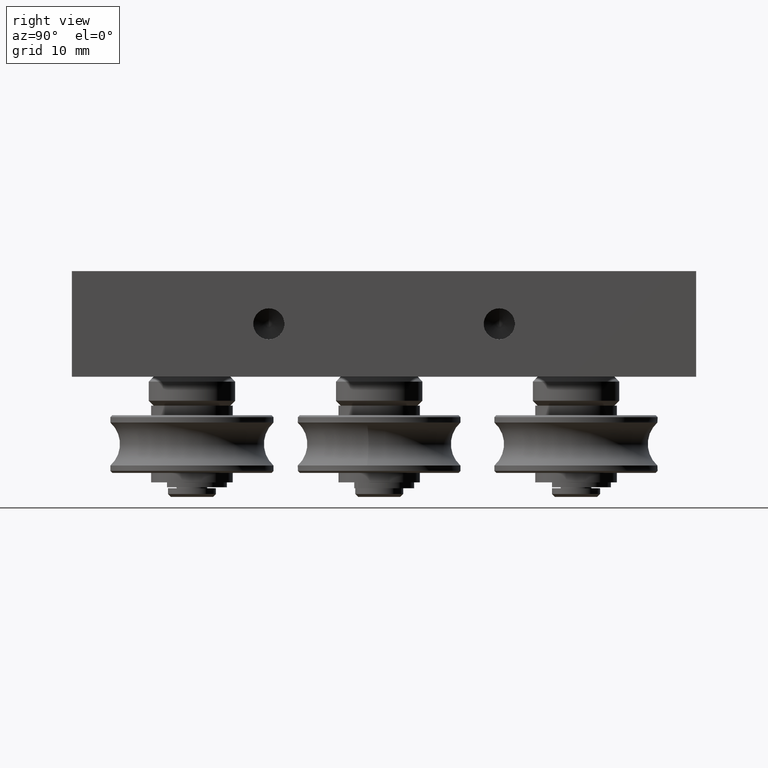
[diagram: clean part render]
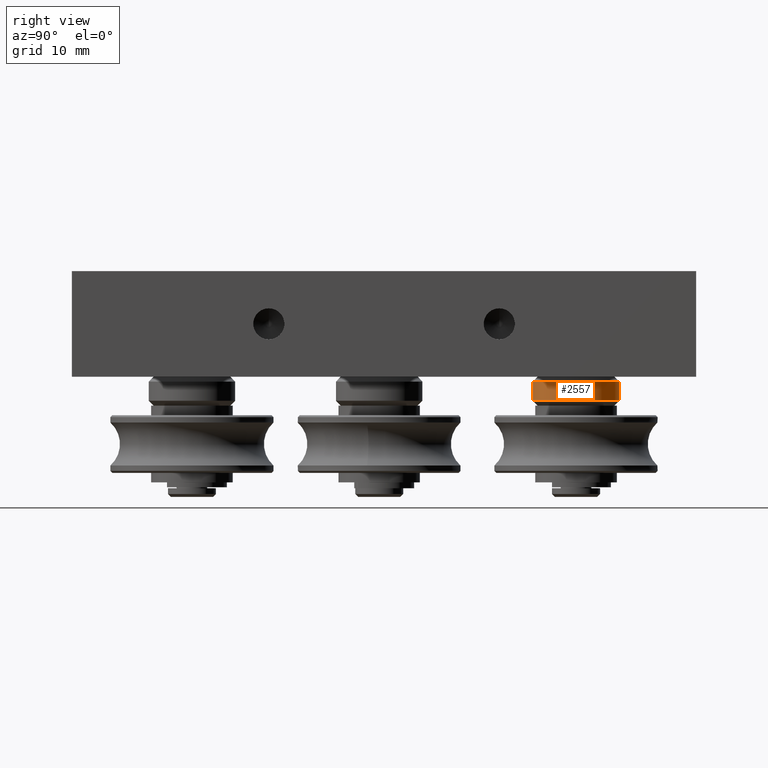
[diagram: same view with one face highlighted and labeled with its STEP entity id]
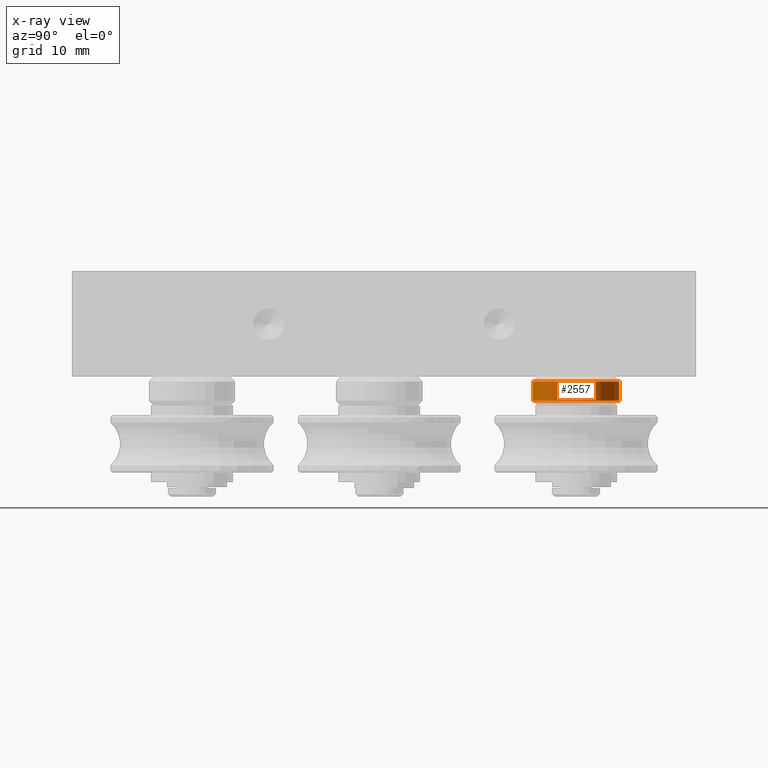
[diagram: x-ray of the same camera — body ghosted, the highlighted face saturated]
A machine part, right view. The second image highlights one B-rep face of the part: STEP entity #2557.
The next image is the same camera in x-ray: the body ghosted, the highlighted face saturated — about 0% of this face is hidden behind the body in this view.
In plain terms, the highlighted cylindrical surface (bore or boss wall) has radius 4.5 mm, axis along (0, 0, -1).
Its self-contained STEP definition (entity closure, byte-faithful):
#249=CYLINDRICAL_SURFACE('',#2959,4.5);
#337=FACE_OUTER_BOUND('',#517,.T.);
#517=EDGE_LOOP('',(#2010,#2011,#2012,#2013,#2014,#2015));
#720=LINE('',#4303,#922);
#922=VECTOR('',#3472,4.5);
#1086=CIRCLE('',#2957,4.5);
#1087=CIRCLE('',#2958,4.5);
#1088=CIRCLE('',#2960,4.5);
#1089=CIRCLE('',#2961,4.5);
#1264=VERTEX_POINT('',#4296);
#1265=VERTEX_POINT('',#4298);
#1266=VERTEX_POINT('',#4302);
#1267=VERTEX_POINT('',#4304);
#1536=EDGE_CURVE('',#1264,#1265,#1086,.T.);
#1537=EDGE_CURVE('',#1265,#1264,#1087,.T.);
#1538=EDGE_CURVE('',#1265,#1266,#720,.T.);
#1539=EDGE_CURVE('',#1267,#1266,#1088,.T.);
#1540=EDGE_CURVE('',#1266,#1267,#1089,.T.);
#2010=ORIENTED_EDGE('',*,*,#1536,.F.);
#2011=ORIENTED_EDGE('',*,*,#1537,.F.);
#2012=ORIENTED_EDGE('',*,*,#1538,.T.);
#2013=ORIENTED_EDGE('',*,*,#1539,.F.);
#2014=ORIENTED_EDGE('',*,*,#1540,.F.);
#2015=ORIENTED_EDGE('',*,*,#1538,.F.);
#2557=ADVANCED_FACE('',(#337),#249,.T.);
#2957=AXIS2_PLACEMENT_3D('',#4299,#3466,#3467);
#2958=AXIS2_PLACEMENT_3D('',#4300,#3468,#3469);
#2959=AXIS2_PLACEMENT_3D('',#4301,#3470,#3471);
#2960=AXIS2_PLACEMENT_3D('',#4305,#3473,#3474);
#2961=AXIS2_PLACEMENT_3D('',#4306,#3475,#3476);
#3466=DIRECTION('center_axis',(1.,0.,0.));
#3467=DIRECTION('ref_axis',(0.,-1.,0.));
#3468=DIRECTION('center_axis',(1.,0.,0.));
#3469=DIRECTION('ref_axis',(0.,-1.,0.));
#3470=DIRECTION('center_axis',(1.,0.,0.));
#3471=DIRECTION('ref_axis',(0.,1.,0.));
#3472=DIRECTION('',(-1.,0.,0.));
#3473=DIRECTION('center_axis',(-1.,0.,0.));
#3474=DIRECTION('ref_axis',(0.,-1.,0.));
#3475=DIRECTION('center_axis',(-1.,0.,0.));
#3476=DIRECTION('ref_axis',(0.,-1.,0.));
#4296=CARTESIAN_POINT('',(2.5,4.5,5.51091059616309E-16));
#4298=CARTESIAN_POINT('',(2.5,-4.5,-5.51091059616309E-16));
#4299=CARTESIAN_POINT('Origin',(2.5,0.,0.));
#4300=CARTESIAN_POINT('Origin',(2.5,0.,0.));
#4301=CARTESIAN_POINT('Origin',(1.5,0.,0.));
#4302=CARTESIAN_POINT('',(0.5,-4.5,-5.51091059616309E-16));
#4303=CARTESIAN_POINT('',(1.5,-4.5,-5.51091059616309E-16));
#4304=CARTESIAN_POINT('',(0.5,4.5,-5.51091059616309E-16));
#4305=CARTESIAN_POINT('Origin',(0.5,0.,0.));
#4306=CARTESIAN_POINT('Origin',(0.5,0.,0.));